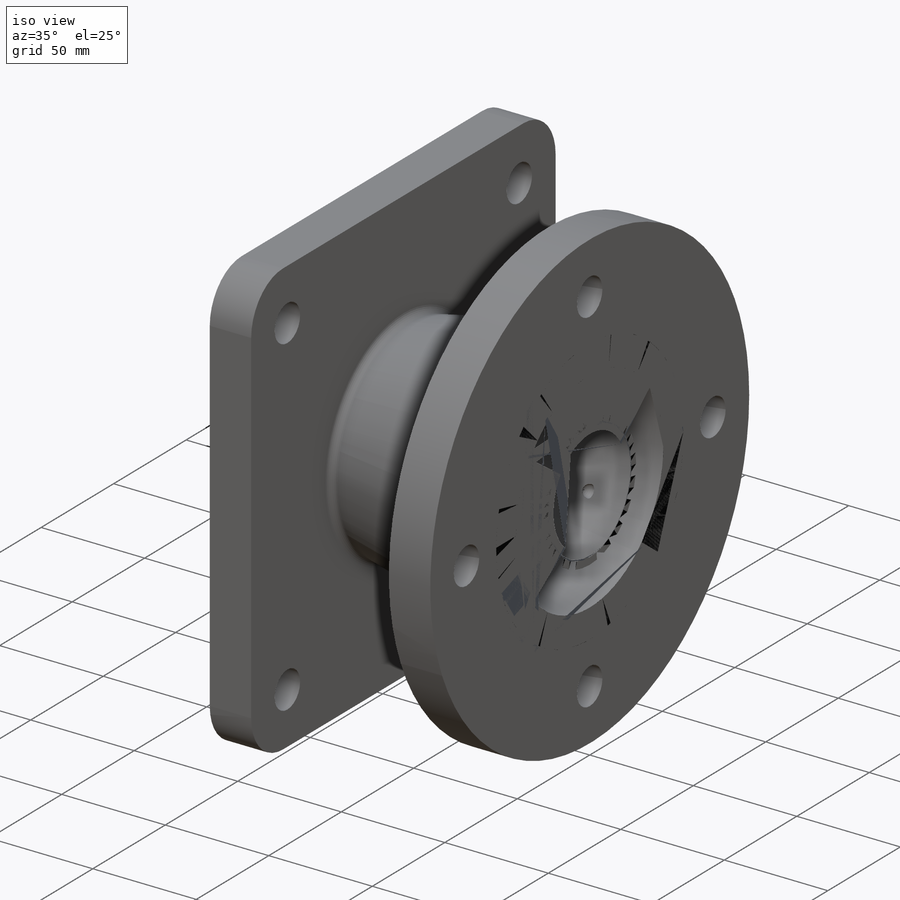
[diagram: iso view]
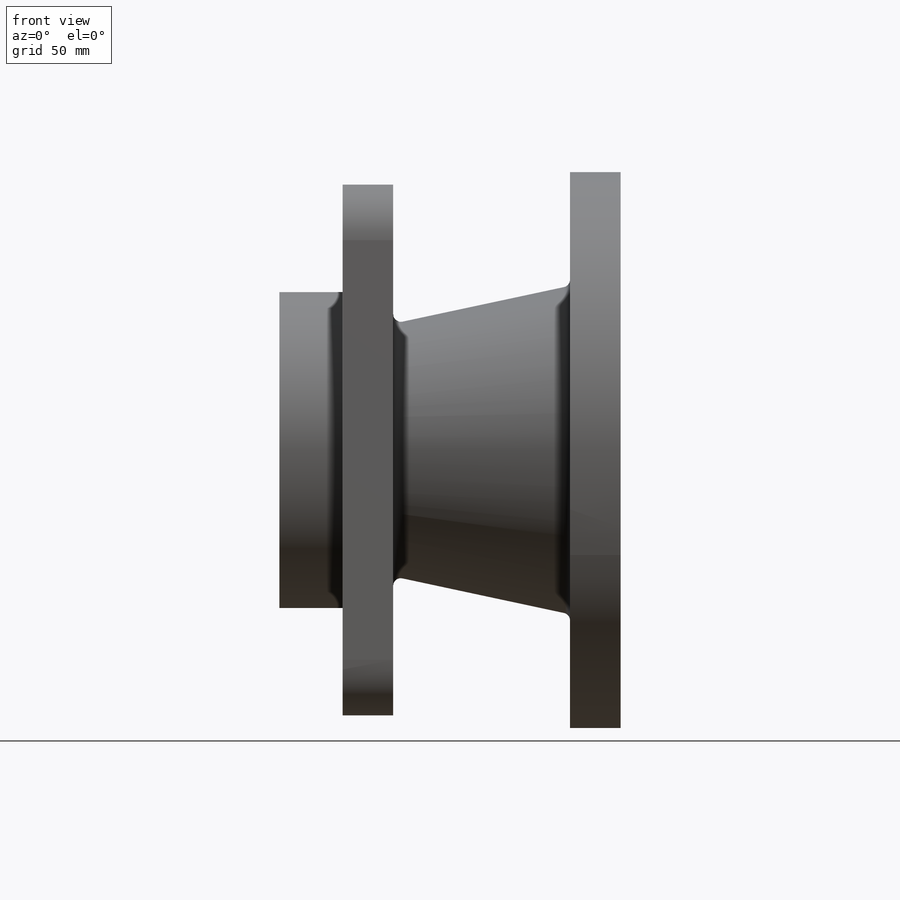
[diagram: front view]
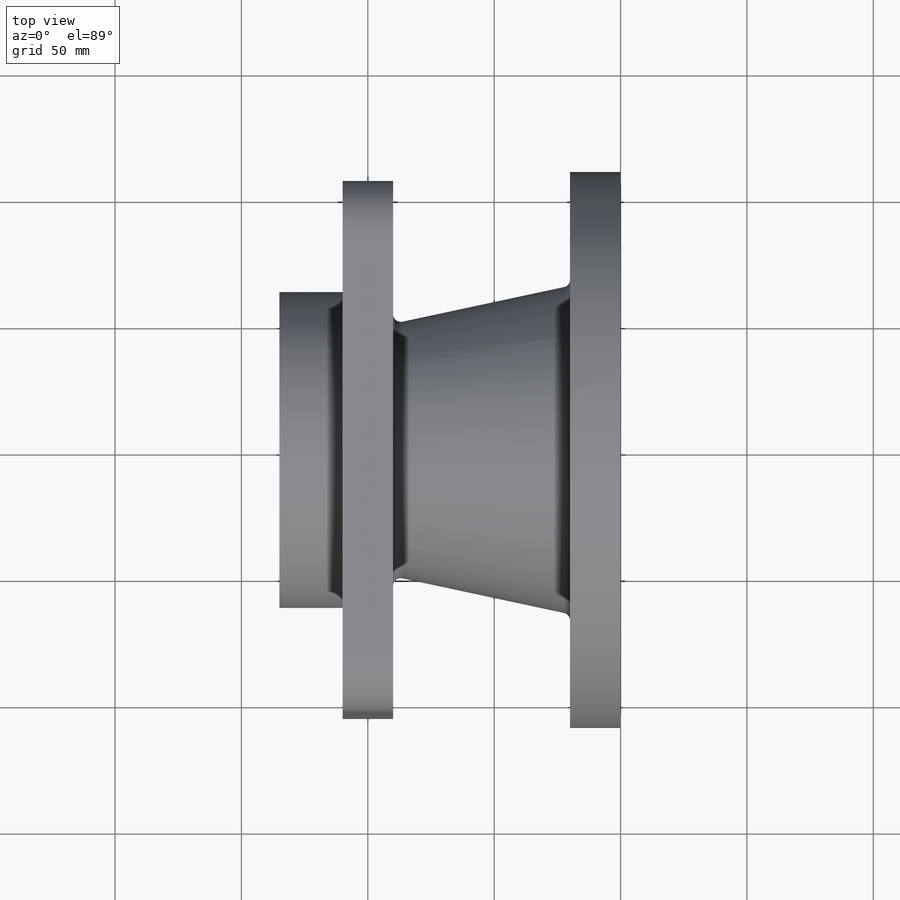
[diagram: top view]
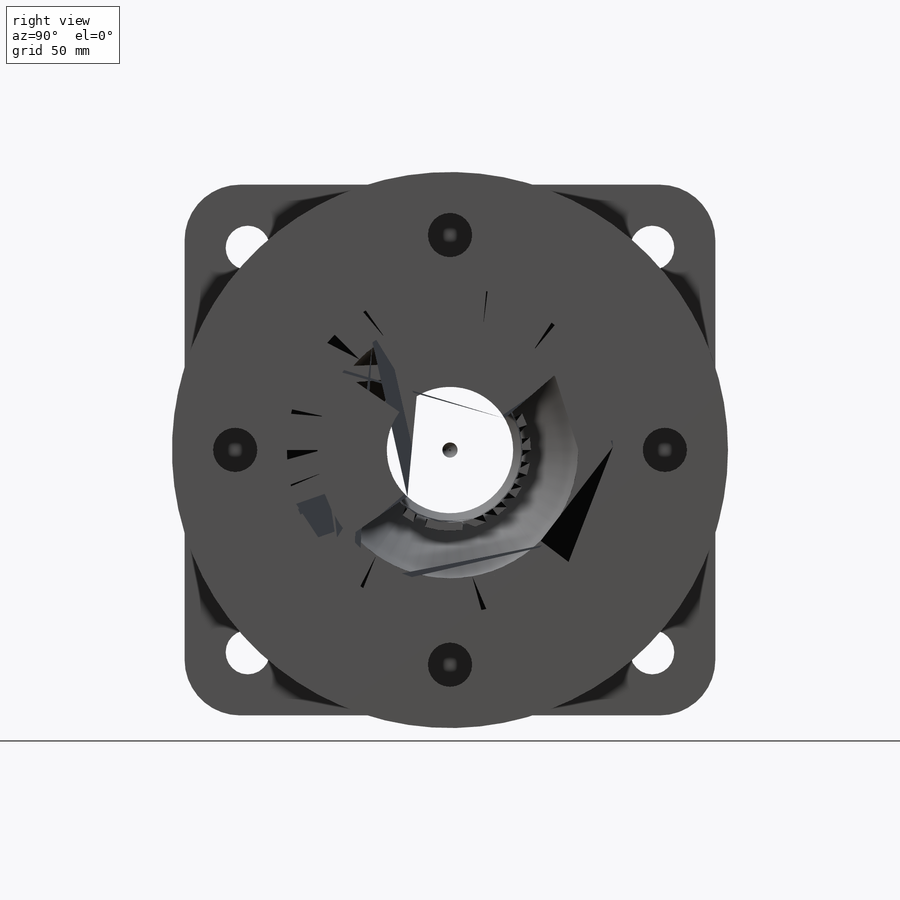
[diagram: right view]
SOLIDWORKS PART (.sldprt)
format: sldprt  version: not decoded by parser v0  size: 658,944 bytes
history: native  units: mm
features: sketch x4, plane x3, cut_extrude x2, pattern_circular x2, chamfer x2, material x1, revolve x1, thread x1, extrude x1, fillet x1 (+9 scaffold rows collapsed)
feature tree (27):
  scaffold x9  (default folders/planes/origin — collapsed)
  material  "Сталь"
  plane  "Спереди"
  plane  "Сверху"
  plane  "Справа"
  sketch  "Эскиз1"  dims[c1.D1=220.0mm c1.D2=20.0mm c1.D3=105.0mm c1.D4=105.0mm c1.D5=130.0mm c1.D6=35.0mm c1.D7=150.0mm c1.D8=210.0mm c1.D9=230.0mm c1.D10=125.0mm c1.D11=60.0mm c1.D12=50.0mm c1.D13=77.5mm c1.D14=80.0mm c1.D15=65.0mm c1.D16=95.0mm c2.D4=100.0mm c2.D6=65.0mm c2.D7=25.0mm c2.D9=105.0mm c2.D11=70.0mm c2.D13=57.425mm c2.D14=8.0mm]
  revolve  "Повернуть1"  [1 undecoded]
  thread  "Условное изображение резьбы1"  Diameter=64mm  [1 undecoded]
  sketch  "Эскиз2"  dims[D2=17.5mm D1=85.0mm]
  cut_extrude  "Вырез-Вытянуть1"  [1 undecoded]
  pattern_circular  "Круговой массив1"  Count=4 Angle=360deg
  sketch  "Эскиз3"  dims[D1=220.0mm]
  extrude  "Бобышка-Вытянуть1"  [1 undecoded]
  sketch  "Эскиз4"  dims[c1.D1=~21.34612mm c1.D2=17.5mm c2.D1=~24.936179mm c2.D2=17.5mm c3.D1=80.0mm]
  cut_extrude  "Вырез-Вытянуть2"  [1 undecoded]
  fillet  "Скругление1"  Radius=22mm
  pattern_circular  "Круговой массив5"  Count=4 Angle=360deg
  chamfer  "Фаска1"  Distance=3.2875mm Angle=45deg
  chamfer  "Скругление2"  Distance=3mm
decode coverage: 10 of 14 modeling features carry decoded parameters
note: ~ marks probable driven/reference dimensions
note: 5 parameter values undecoded
summary: no parameter record found for 4 features
note: suppression state not decoded; provenance and decode notes live in map.json
